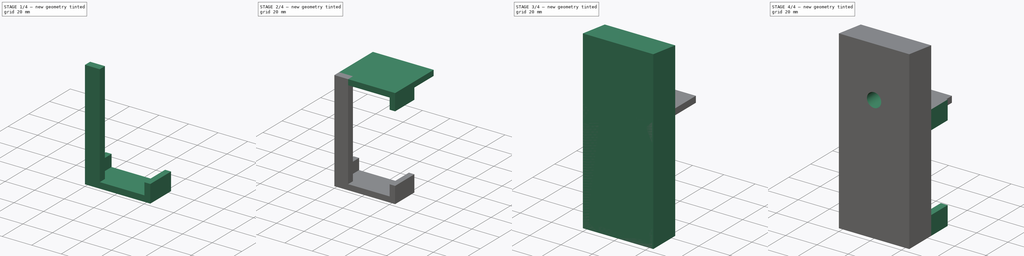
[diagram: build sequence overview — one tinted view per stage of 4, left to right]
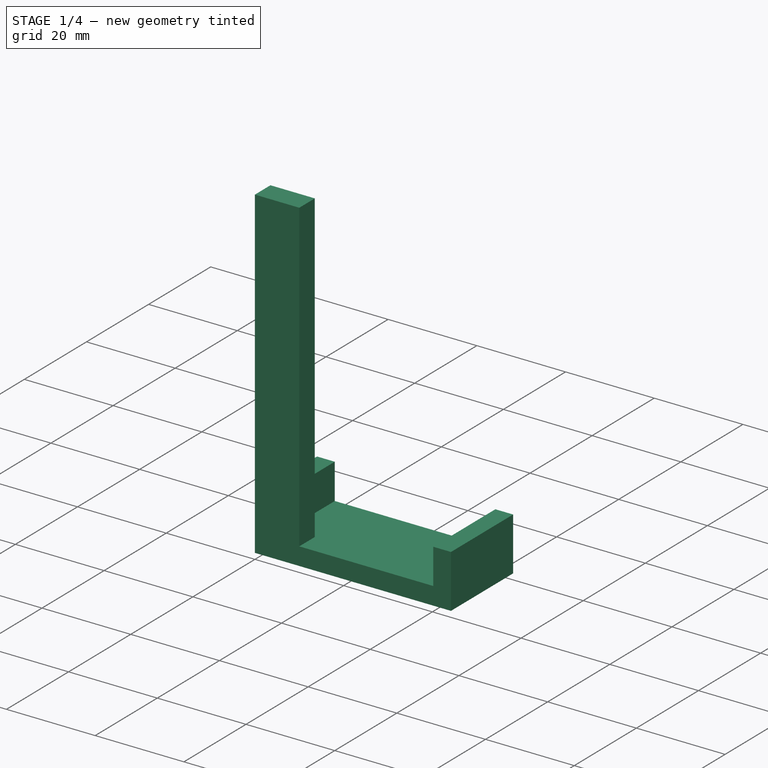
[diagram: stage 1 of 4 — iso view after this stage's code; geometry added in this stage tinted green]
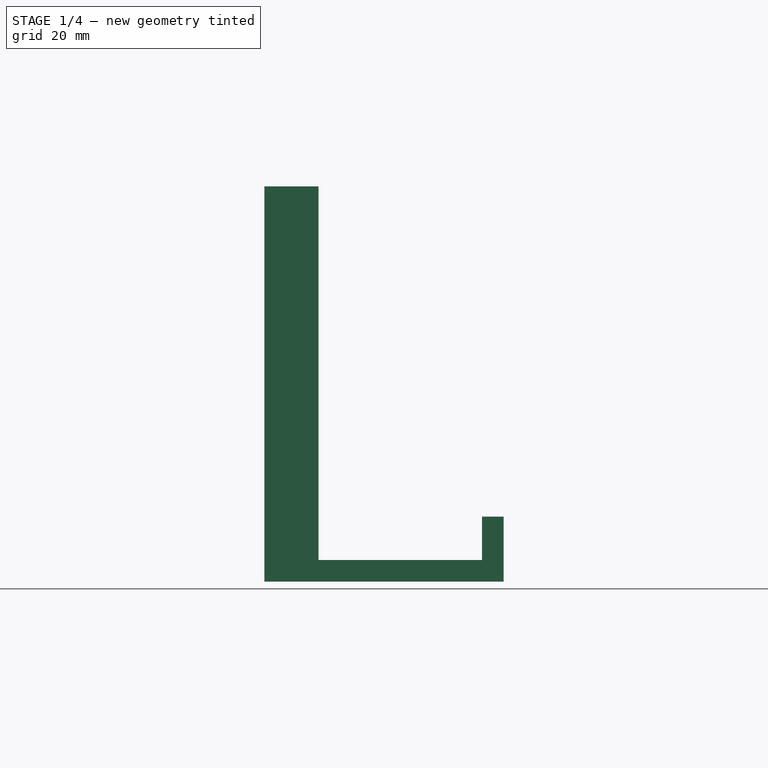
[diagram: stage 1 of 4 — front view after this stage's code; geometry added in this stage tinted green]
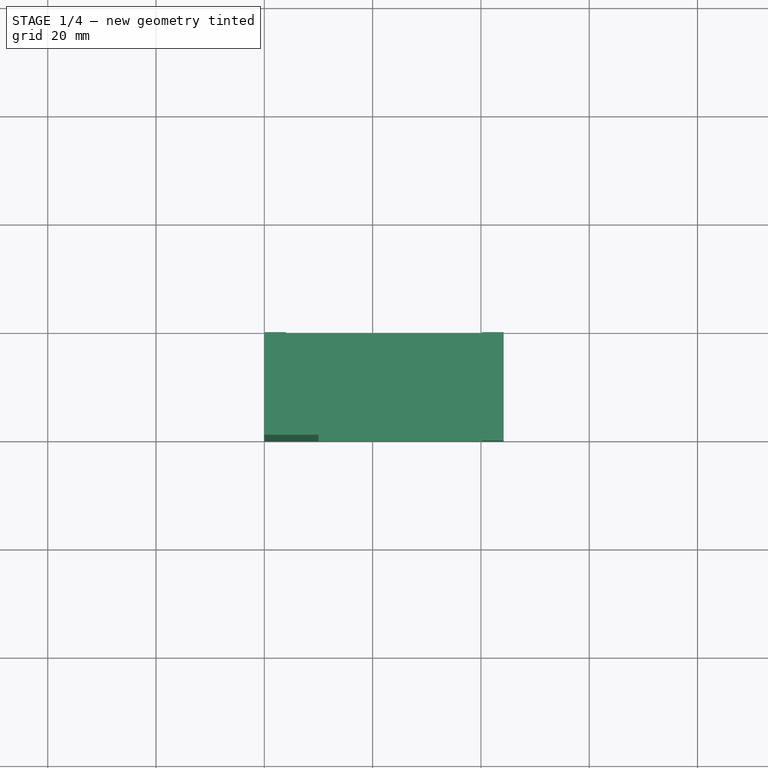
[diagram: stage 1 of 4 — top view after this stage's code; geometry added in this stage tinted green]
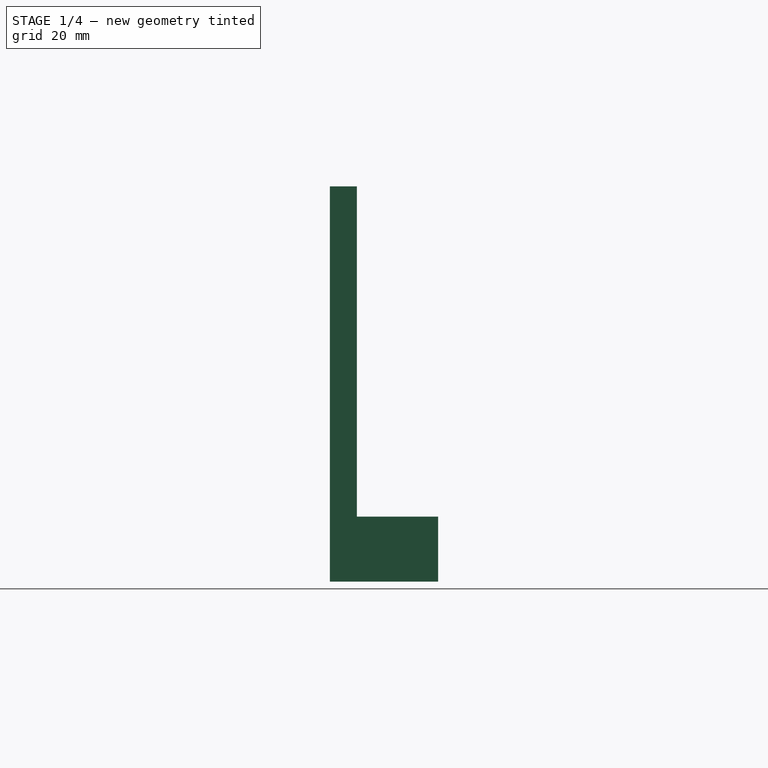
[diagram: stage 1 of 4 — right view after this stage's code; geometry added in this stage tinted green]
FCSTD DOCUMENT  (FreeCAD 0.19R24366 (Git))
Label: sailface_vertical_assembly_v1
License: All rights reserved
LicenseURL: http://en.wikipedia.org/wiki/All_rights_reserved
objects: PartDesign::Pad×11, Sketcher::SketchObject×10, PartDesign::Body×2, App::Part×2, PartDesign::Pocket×1
note: 36 computed .brp shape members not serialized (recipe doc carries the construction recipe); baked Part::Feature solids carry a one-line shape summary decoded from their .brp

FEATURE [PartDesign::Body] Body
  Group = -> [Sketch,Pad,Sketch001,Pad001,Sketch002,Pocket,Sketch003,Pad002,Sketch004,Pad003]
  Origin = -> Origin001
  Tip = -> Pad003
FEATURE [App::Part] Part  label="VerticalConnector"
  Group = -> [Body]
  Origin = -> Origin
FEATURE [Sketcher::SketchObject] Sketch005
  FullyConstrained = true
  MapMode = 5
  Placement = pos=(0,0,0) rot=(1,0,0;1.5708rad)
  Support = -> [XZ_Plane003]
  sketch-geometry (4):
    g0: LineSegment StartX=0 StartY=0 StartZ=0 EndX=10 EndY=0 EndZ=0
    g1: LineSegment StartX=10 StartY=0 StartZ=0 EndX=10 EndY=73 EndZ=0
    g2: LineSegment StartX=10 StartY=73 StartZ=0 EndX=0 EndY=73 EndZ=0
    g3: LineSegment StartX=0 StartY=73 StartZ=0 EndX=0 EndY=0 EndZ=0
  constraints (11):
    c: Coincident(g0,g1)
    c: Coincident(g1,g2)
    c: Coincident(g2,g3)
    c: Coincident(g3,g0)
    c: Horizontal(g0)
    c: Horizontal(g2)
    c: Vertical(g1)
    c: Vertical(g3)
    c: Coincident(g0,g-1)
    c: DistanceX(g2,g2) = 10
    c: DistanceY(g1,g1) = 73
FEATURE [PartDesign::Pad] Pad004
  Direction = (1,1,1)
  Length = 5
  Length2 = 100
  Placement = pos=(0,0,0) rot=(1,0,0;1.5708rad)
  Profile = -> Sketch005
  Reversed = true
  Type = 0
FEATURE [Sketcher::SketchObject] Sketch006
  ExternalGeometry = -> [Pad004]
  FullyConstrained = true
  MapMode = 5
  Placement = pos=(0,5,-1.1e-15) rot=(-1,0,0;1.5708rad)
  Support = -> [Pad004]
  sketch-geometry (9):
    g0: LineSegment StartX=0 StartY=0 StartZ=0 EndX=10 EndY=0 EndZ=0
    g1: LineSegment StartX=10 StartY=0 StartZ=0 EndX=44.2 EndY=0 EndZ=0
    g2: LineSegment StartX=0 StartY=-12 StartZ=0 EndX=0 EndY=0 EndZ=0
    g3: LineSegment StartX=0 StartY=-12 StartZ=0 EndX=4 EndY=-12 EndZ=0
    g4: LineSegment StartX=4 StartY=-12 StartZ=0 EndX=4 EndY=-4 EndZ=0
    g5: LineSegment StartX=4 StartY=-4 StartZ=0 EndX=40.2 EndY=-4 EndZ=0
    g6: LineSegment StartX=40.2 StartY=-4 StartZ=0 EndX=40.2 EndY=-12 EndZ=0
    g7: LineSegment StartX=40.2 StartY=-12 StartZ=0 EndX=44.2 EndY=-12 EndZ=0
    g8: LineSegment StartX=44.2 StartY=-12 StartZ=0 EndX=44.2 EndY=0 EndZ=0
  constraints (25):
    c: Coincident(g0,g-1)
    c: Coincident(g0,g-3)
    c: Horizontal(g1)
    c: Vertical(g2)
    c: Coincident(g2,g0)
    c: Coincident(g0,g1)
    c: Coincident(g3,g2)
    c: Horizontal(g3)
    c: Vertical(g4)
    c: Horizontal(g5)
    c: Vertical(g6)
    c: Horizontal(g7)
    c: Coincident(g8,g1)
    c: Vertical(g8)
    c: Coincident(g5,g6)
    c: Coincident(g6,g7)
    c: Coincident(g4,g5)
    c: Coincident(g3,g4)
    c: Equal(g6,g4)
    c: DistanceY(g6,g6) = 8
    c: Coincident(g7,g8)
    c: DistanceX(g4,g5) = 36.2
    c: DistanceY(g4,g0) = 4
    c: Equal(g3,g7)
    c: DistanceX(g6,g7) = 4
FEATURE [PartDesign::Pad] Pad005
  BaseFeature = -> Pad004
  Direction = (1,1,1)
  Length = 15
  Length2 = 100
  Placement = pos=(0,0,0) rot=(1,0,0;1.5708rad)
  Profile = -> Sketch006
  Type = 0
FEATURE [PartDesign::Pad] Pad006
  BaseFeature = -> Pad005
  Direction = (1,1,1)
  Length = 5
  Length2 = 100
  Placement = pos=(0,0,0) rot=(1,0,0;1.5708rad)
  Profile = -> Sketch006
  Reversed = true
  Type = 0
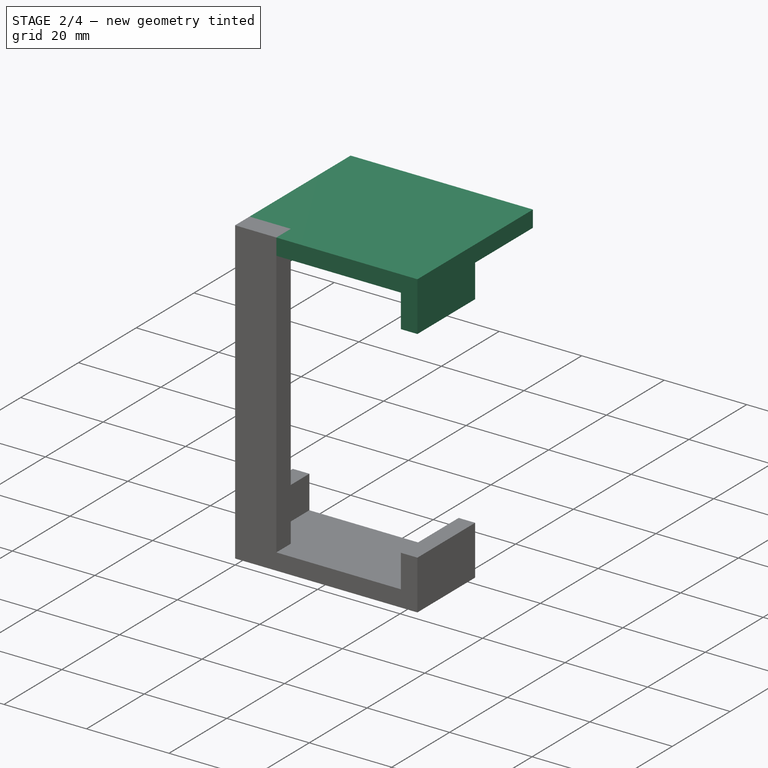
[diagram: stage 2 of 4 — iso view after this stage's code; geometry added in this stage tinted green]
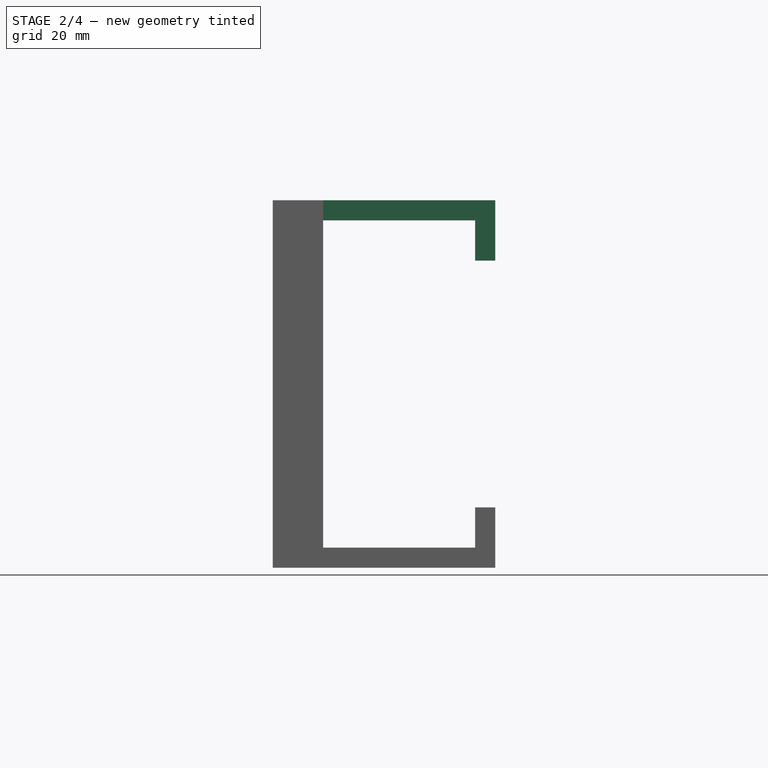
[diagram: stage 2 of 4 — front view after this stage's code; geometry added in this stage tinted green]
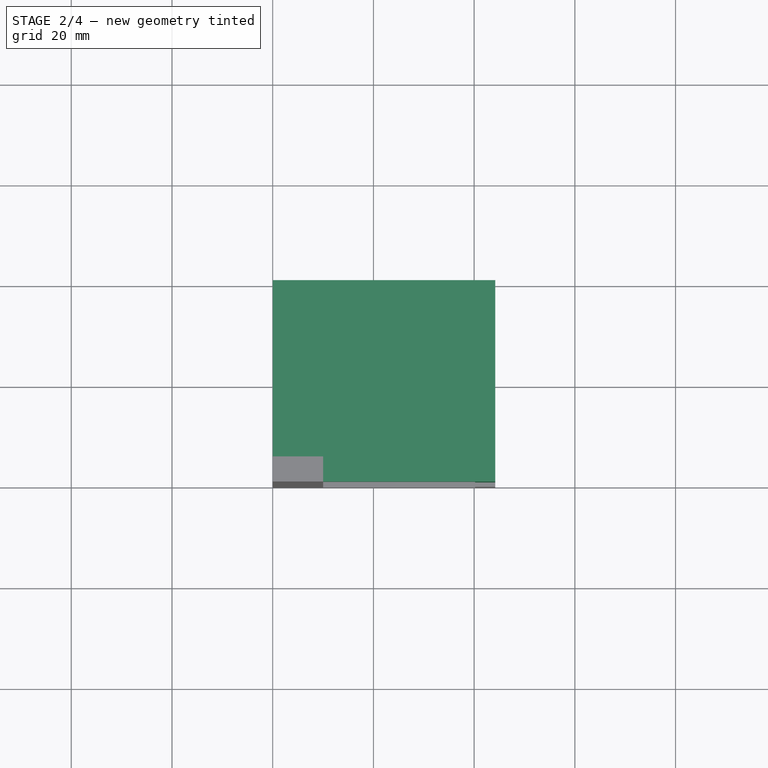
[diagram: stage 2 of 4 — top view after this stage's code; geometry added in this stage tinted green]
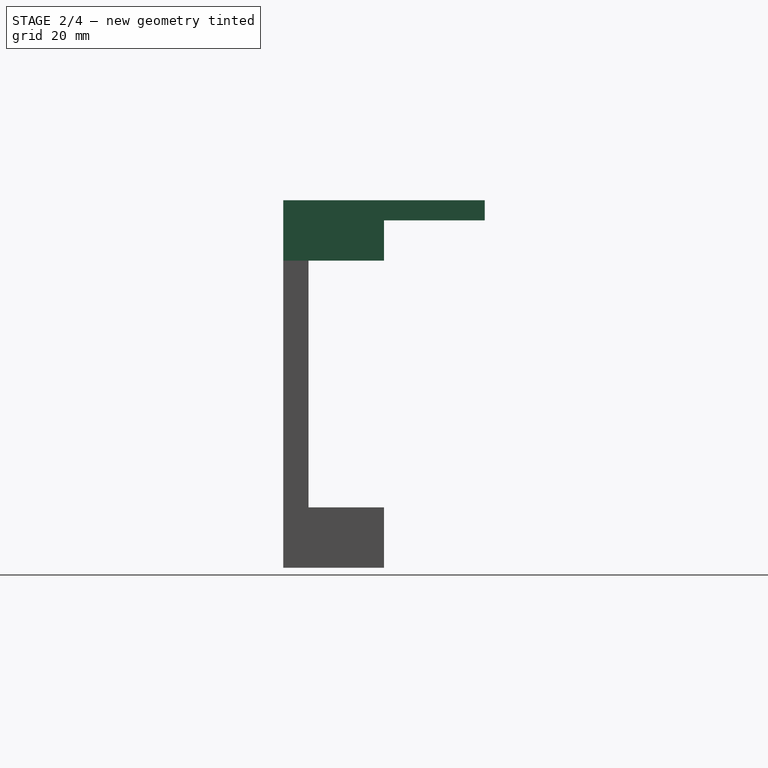
[diagram: stage 2 of 4 — right view after this stage's code; geometry added in this stage tinted green]
FEATURE [Sketcher::SketchObject] Sketch007
  ExternalGeometry = -> [Pad004]
  FullyConstrained = true
  MapMode = 5
  Placement = pos=(0,5,-1.1e-15) rot=(-1,0,0;1.5708rad)
  Support = -> [Pad004]
  sketch-geometry (8):
    g0: LineSegment StartX=0 StartY=-73 StartZ=0 EndX=0 EndY=-61 EndZ=0
    g1: LineSegment StartX=0 StartY=-61 StartZ=0 EndX=4 EndY=-61 EndZ=0
    g2: LineSegment StartX=4 StartY=-61 StartZ=0 EndX=4 EndY=-69 EndZ=0
    g3: LineSegment StartX=4 StartY=-69 StartZ=0 EndX=40.2 EndY=-69 EndZ=0
    g4: LineSegment StartX=40.2 StartY=-69 StartZ=0 EndX=40.2 EndY=-61 EndZ=0
    g5: LineSegment StartX=40.2 StartY=-61 StartZ=0 EndX=44.2 EndY=-61 EndZ=0
    g6: LineSegment StartX=44.2 StartY=-61 StartZ=0 EndX=44.2 EndY=-73 EndZ=0
    g7: LineSegment StartX=0 StartY=-73 StartZ=0 EndX=44.2 EndY=-73 EndZ=0
  constraints (23):
    c: Coincident(g0,g-4)
    c: Vertical(g0)
    c: Coincident(g1,g0)
    c: Horizontal(g1)
    c: Vertical(g2)
    c: Horizontal(g3)
    c: Coincident(g4,g3)
    c: Vertical(g4)
    c: Vertical(g6)
    c: DistanceX(g3,g3) = 36.2
    c: Coincident(g3,g2)
    c: Coincident(g2,g1)
    c: Coincident(g5,g4)
    c: Coincident(g6,g5)
    c: Horizontal(g5)
    c: Coincident(g7,g0)
    c: Coincident(g7,g6)
    c: Horizontal(g7)
    c: DistanceX(g5,g5) = 4
    c: DistanceY(g2,g0) = 8
    c: DistanceX(g0,g2) = 4
    c: DistanceY(g6,g3) = 4
    c: Equal(g4,g2)
FEATURE [PartDesign::Pad] Pad007
  BaseFeature = -> Pad006
  Direction = (1,1,1)
  Length = 15
  Length2 = 100
  Placement = pos=(0,0,0) rot=(1,0,0;1.5708rad)
  Profile = -> Sketch007
  Type = 0
FEATURE [PartDesign::Pad] Pad008
  BaseFeature = -> Pad007
  Direction = (1,1,1)
  Length = 5
  Length2 = 100
  Placement = pos=(0,0,0) rot=(1,0,0;1.5708rad)
  Profile = -> Sketch007
  Reversed = true
  Type = 0
FEATURE [Sketcher::SketchObject] Sketch008
  ExternalGeometry = -> [Pad008]
  FullyConstrained = true
  MapMode = 5
  Placement = pos=(0,20,-1.34e-14) rot=(-1,0,0;1.5708rad)
  Support = -> [Pad008]
  sketch-geometry (4):
    g0: LineSegment StartX=0 StartY=-73 StartZ=0 EndX=44.2 EndY=-73 EndZ=0
    g1: LineSegment StartX=44.2 StartY=-73 StartZ=0 EndX=44.2 EndY=-69 EndZ=0
    g2: LineSegment StartX=44.2 StartY=-69 StartZ=0 EndX=0 EndY=-69 EndZ=0
    g3: LineSegment StartX=0 StartY=-69 StartZ=0 EndX=0 EndY=-73 EndZ=0
  constraints (11):
    c: Coincident(g0,g1)
    c: Coincident(g1,g2)
    c: Coincident(g2,g3)
    c: Coincident(g3,g0)
    c: Horizontal(g0)
    c: Horizontal(g2)
    c: Vertical(g1)
    c: Vertical(g3)
    c: PointOnObject(g0,g-2)
    c: Coincident(g0,g-3)
    c: Horizontal(g-4,g1)
FEATURE [PartDesign::Pad] Pad009
  BaseFeature = -> Pad008
  Direction = (1,1,1)
  Length = 20
  Length2 = 100
  Placement = pos=(0,0,0) rot=(1,0,0;1.5708rad)
  Profile = -> Sketch008
  Type = 0
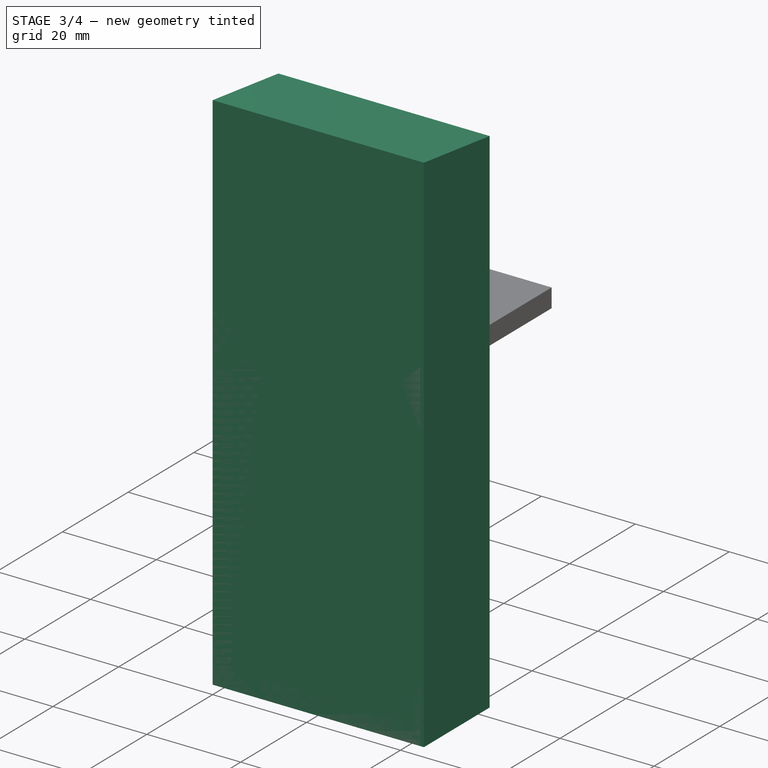
[diagram: stage 3 of 4 — iso view after this stage's code; geometry added in this stage tinted green]
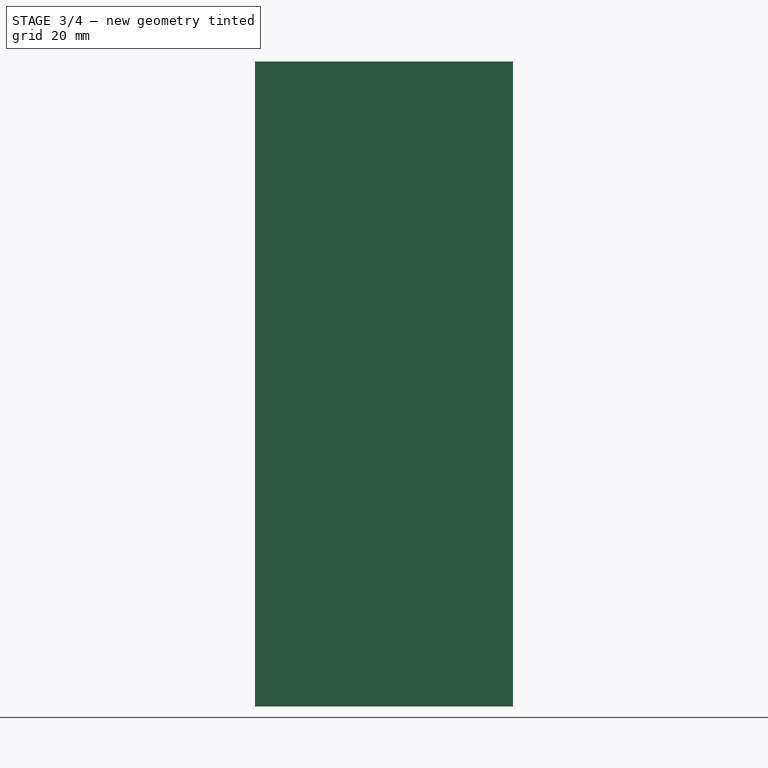
[diagram: stage 3 of 4 — front view after this stage's code; geometry added in this stage tinted green]
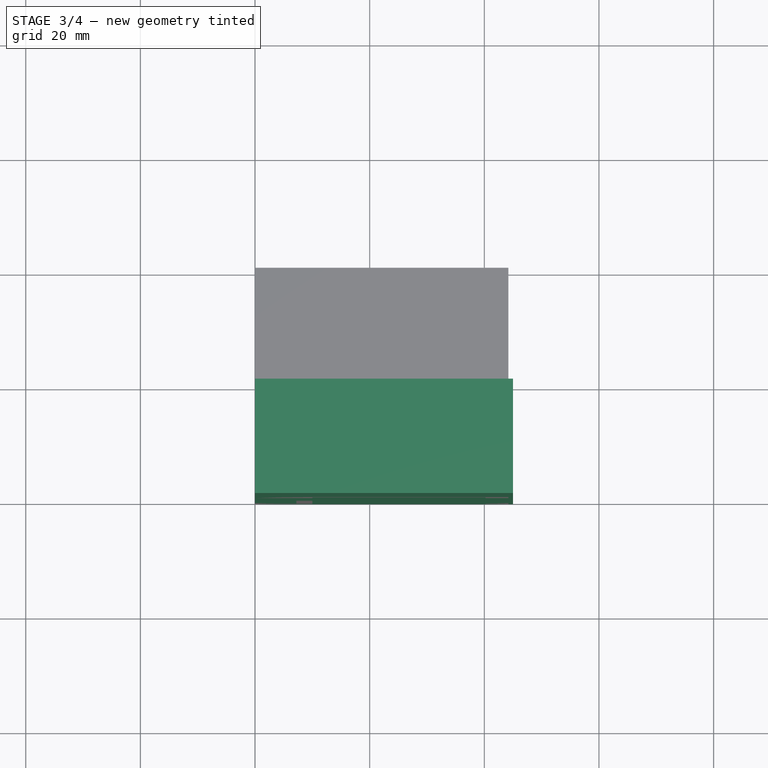
[diagram: stage 3 of 4 — top view after this stage's code; geometry added in this stage tinted green]
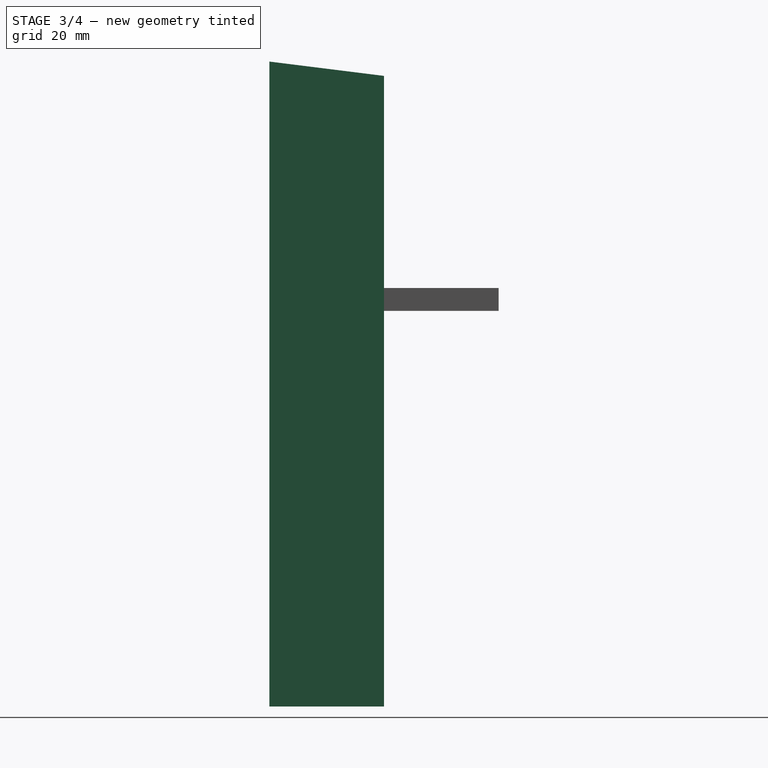
[diagram: stage 3 of 4 — right view after this stage's code; geometry added in this stage tinted green]
FEATURE [Sketcher::SketchObject] Sketch
  FullyConstrained = true
  MapMode = 5
  Support = -> [XY_Plane001]
  sketch-geometry (4):
    g0: LineSegment StartX=0 StartY=20 StartZ=0 EndX=45 EndY=20 EndZ=0
    g1: LineSegment StartX=45 StartY=20 StartZ=0 EndX=45 EndY=0 EndZ=0
    g2: LineSegment StartX=45 StartY=0 StartZ=0 EndX=0 EndY=0 EndZ=0
    g3: LineSegment StartX=0 StartY=0 StartZ=0 EndX=0 EndY=20 EndZ=0
  constraints (11):
    c: Coincident(g0,g1)
    c: Coincident(g1,g2)
    c: Coincident(g2,g3)
    c: Coincident(g3,g0)
    c: Horizontal(g0)
    c: Horizontal(g2)
    c: Vertical(g1)
    c: Vertical(g3)
    c: Coincident(g2,g-1)
    c: DistanceX(g0,g0) = 45
    c: DistanceY(g3,g3) = 20
FEATURE [PartDesign::Pad] Pad
  Direction = (1,1,1)
  Length = 110
  Length2 = 100
  Profile = -> Sketch
  Type = 0
FEATURE [Sketcher::SketchObject] Sketch001
  ExternalGeometry = -> [Pad]
  FullyConstrained = true
  MapMode = 5
  Placement = pos=(45,0,0) rot=(0.57735,0.57735,0.57735;2.0944rad)
  Support = -> [Pad]
  sketch-geometry (3):
    g0: LineSegment StartX=0 StartY=110 StartZ=0 EndX=0 EndY=112.5 EndZ=0
    g1: LineSegment StartX=0 StartY=112.5 StartZ=0 EndX=20 EndY=110 EndZ=0
    g2: LineSegment StartX=20 StartY=110 StartZ=0 EndX=0 EndY=110 EndZ=0
  constraints (7):
    c: Coincident(g0,g-3)
    c: PointOnObject(g0,g-2)
    c: Coincident(g1,g-4)
    c: Coincident(g2,g1)
    c: Coincident(g2,g0)
    c: Coincident(g1,g0)
    c: DistanceY(g0,g0) = 2.5
FEATURE [PartDesign::Pad] Pad001
  BaseFeature = -> Pad
  Direction = (1,1,1)
  Length = 45
  Length2 = 100
  Profile = -> Sketch001
  Reversed = true
  Type = 0
FEATURE [Sketcher::SketchObject] Sketch009
  ExternalGeometry = -> [Pad009]
  FullyConstrained = true
  MapMode = 5
  Placement = pos=(0,6.49e-14,69) rot=(1,0,0;3.14159rad)
  Support = -> [Pad009]
  sketch-geometry (4):
    g0: LineSegment StartX=10 StartY=-2.84e-14 StartZ=0 EndX=40.2 EndY=4.3e-15 EndZ=0
    g1: LineSegment StartX=40.2 StartY=4.3e-15 StartZ=0 EndX=40.2 EndY=-5 EndZ=0
    g2: LineSegment StartX=40.2 StartY=-5 StartZ=0 EndX=10 EndY=-5 EndZ=0
    g3: LineSegment StartX=10 StartY=-5 StartZ=0 EndX=10 EndY=-2.84e-14 EndZ=0
  constraints (9):
    c: Coincident(g0,g1)
    c: Coincident(g1,g2)
    c: Coincident(g2,g3)
    c: Coincident(g3,g0)
    c: Horizontal(g2)
    c: Vertical(g3)
    c: Coincident(g0,g-4)
    c: Coincident(g0,g-7)
    c: Coincident(g-8,g1)
FEATURE [PartDesign::Pad] Pad010
  BaseFeature = -> Pad009
  Direction = (1,1,1)
  Length = 8
  Length2 = 100
  Placement = pos=(0,0,0) rot=(1,0,0;1.5708rad)
  Profile = -> Sketch009
  Type = 0
FEATURE [PartDesign::Body] Body001  label="BatteryRearMotorHolder001"
  Group = -> [Sketch005,Pad004,Sketch006,Pad005,Pad006,Sketch007,Pad007,Pad008,Sketch008,Pad009,Sketch009,Pad010]
  Origin = -> Origin003
  Tip = -> Pad010
FEATURE [App::Part] Part001  label="BatteryRearMotorHolder"
  Group = -> [Body001]
  Origin = -> Origin002
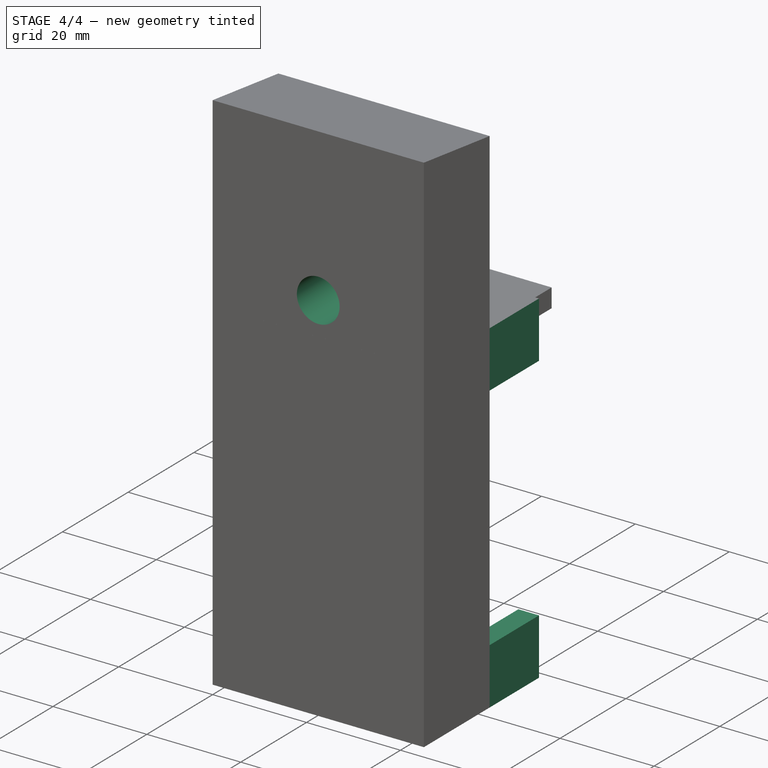
[diagram: stage 4 of 4 — iso view after this stage's code; geometry added in this stage tinted green]
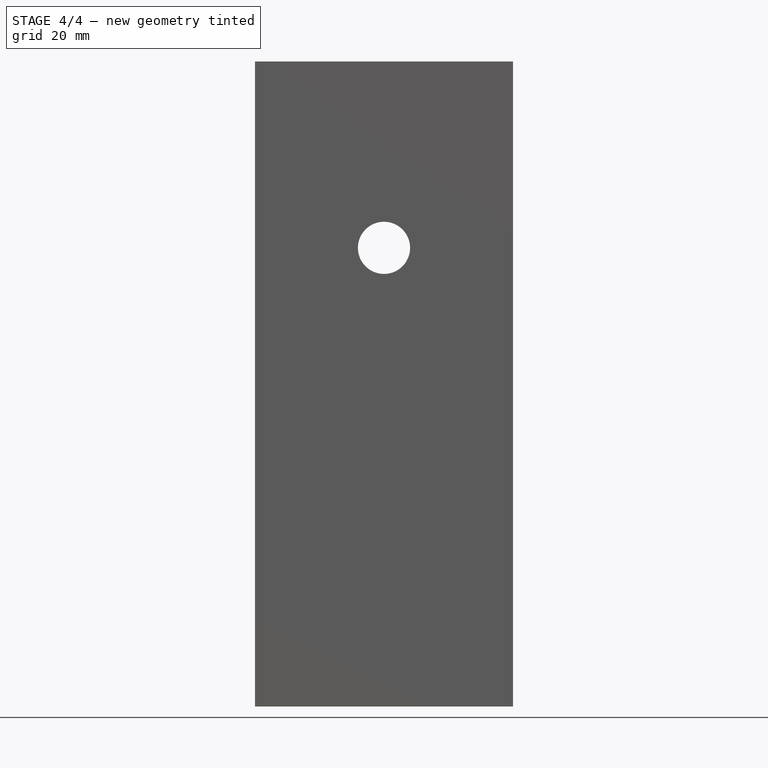
[diagram: stage 4 of 4 — front view after this stage's code; geometry added in this stage tinted green]
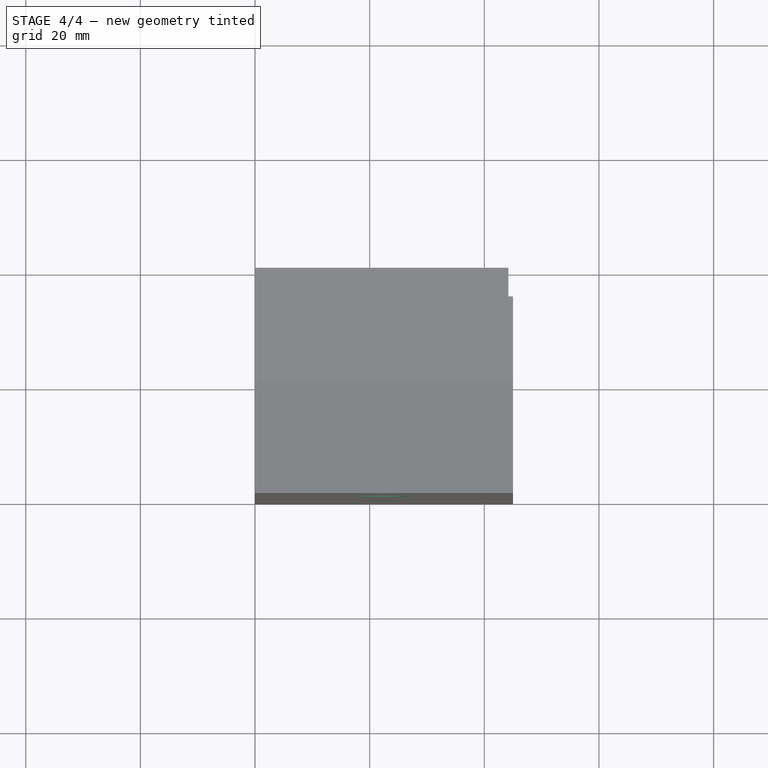
[diagram: stage 4 of 4 — top view after this stage's code; geometry added in this stage tinted green]
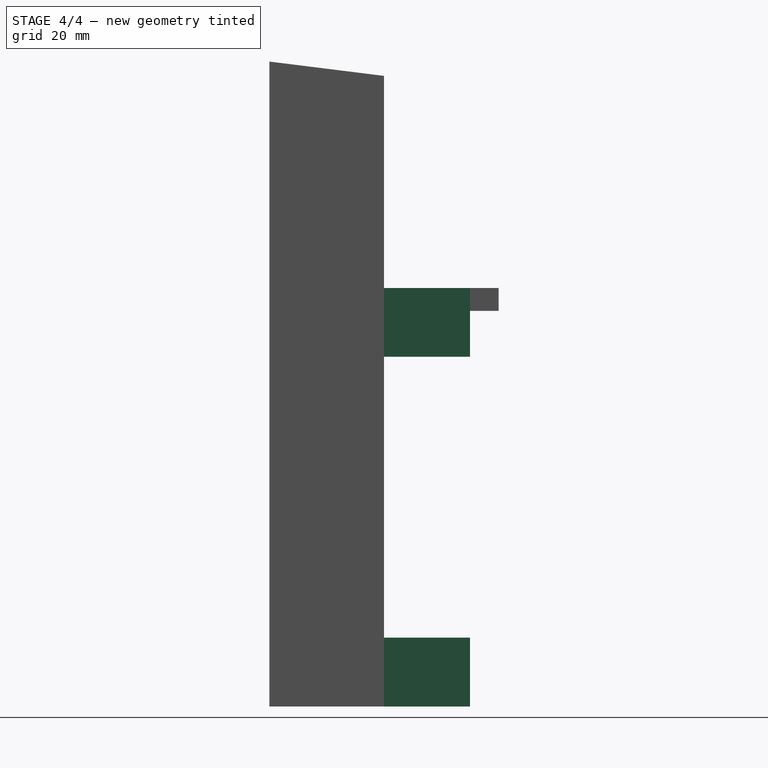
[diagram: stage 4 of 4 — right view after this stage's code; geometry added in this stage tinted green]
FEATURE [Sketcher::SketchObject] Sketch002
  ExternalGeometry = -> [Sketch]
  FullyConstrained = true
  MapMode = 5
  Placement = pos=(0,0,0) rot=(1,0,0;1.5708rad)
  Support = -> [Pad001]
  sketch-geometry (4):
    g0: Circle CenterX=22.5 CenterY=80 CenterZ=0 NormalX=0 NormalY=0 NormalZ=1 AngleXU=0 Radius=4.55
    g1: LineSegment StartX=0 StartY=0 StartZ=0 EndX=22.5 EndY=0 EndZ=0
    g2: LineSegment StartX=22.5 StartY=0 StartZ=0 EndX=45 EndY=0 EndZ=0
    g3: LineSegment StartX=22.5 StartY=0 StartZ=0 EndX=22.5 EndY=80 EndZ=0
  constraints (10):
    c: Coincident(g1,g-1)
    c: PointOnObject(g1,g-1)
    c: Coincident(g2,g1)
    c: Coincident(g2,g-3)
    c: Equal(g2,g1)
    c: Coincident(g3,g1)
    c: Coincident(g3,g0)
    c: Vertical(g3)
    c: DistanceY(g3,g3) = 80
    c: Diameter(g0) = 9.1
FEATURE [PartDesign::Pocket] Pocket
  BaseFeature = -> Pad001
  Length = 20
  Length2 = 100
  Profile = -> Sketch002
  Type = 0
FEATURE [Sketcher::SketchObject] Sketch003
  ExternalGeometry = -> [Sketch,Pocket]
  FullyConstrained = true
  MapMode = 5
  Placement = pos=(0,20,0) rot=(0,0.707107,0.707107;3.14159rad)
  Support = -> [Pocket]
  sketch-geometry (8):
    g0: LineSegment StartX=-4.4 StartY=4 StartZ=0 EndX=-40.6 EndY=4 EndZ=0
    g1: LineSegment StartX=-4.4 StartY=4 StartZ=0 EndX=-4.4 EndY=12 EndZ=0
    g2: LineSegment StartX=-4.4 StartY=12 StartZ=0 EndX=0 EndY=12 EndZ=0
    g3: LineSegment StartX=0 StartY=12 StartZ=0 EndX=0 EndY=0 EndZ=0
    g4: LineSegment StartX=-45 StartY=0 StartZ=0 EndX=-45 EndY=12 EndZ=0
    g5: LineSegment StartX=-45 StartY=12 StartZ=0 EndX=-40.6 EndY=12 EndZ=0
    g6: LineSegment StartX=-40.6 StartY=12 StartZ=0 EndX=-40.6 EndY=4 EndZ=0
    g7: LineSegment StartX=0 StartY=0 StartZ=0 EndX=-45 EndY=0 EndZ=0
  constraints (22):
    c: Horizontal(g0)
    c: Coincident(g1,g0)
    c: Vertical(g1)
    c: PointOnObject(g2,g-2)
    c: Horizontal(g2)
    c: Coincident(g3,g-1)
    c: Coincident(g4,g-3)
    c: Vertical(g4)
    c: Coincident(g6,g0)
    c: Coincident(g4,g5)
    c: Horizontal(g5)
    c: Coincident(g6,g5)
    c: Vertical(g6)
    c: Coincident(g3,g2)
    c: DistanceX(g0,g0) = 36.2
    c: Equal(g2,g5)
    c: DistanceY(g4,g0) = 4
    c: DistanceY(g0,g5) = 8
    c: Horizontal(g1,g5)
    c: Coincident(g7,g3)
    c: Coincident(g7,g4)
    c: Coincident(g1,g2)
FEATURE [PartDesign::Pad] Pad002  label="BatteryHolderBottomPad"
  BaseFeature = -> Pocket
  Direction = (1,1,1)
  Length = 15
  Length2 = 100
  Profile = -> Sketch003
  Type = 0
FEATURE [Sketcher::SketchObject] Sketch004
  ExternalGeometry = -> [Pad002]
  FullyConstrained = true
  MapMode = 5
  Placement = pos=(0,20,0) rot=(0,0.707107,0.707107;3.14159rad)
  Support = -> [Pad002]
  sketch-geometry (8):
    g0: LineSegment StartX=0 StartY=73 StartZ=0 EndX=-45 EndY=73 EndZ=0
    g1: LineSegment StartX=-45 StartY=73 StartZ=0 EndX=-45 EndY=61 EndZ=0
    g2: LineSegment StartX=-45 StartY=61 StartZ=0 EndX=-40.6 EndY=61 EndZ=0
    g3: LineSegment StartX=-40.6 StartY=61 StartZ=0 EndX=-40.6 EndY=69 EndZ=0
    g4: LineSegment StartX=-40.6 StartY=69 StartZ=0 EndX=-4.4 EndY=69 EndZ=0
    g5: LineSegment StartX=-4.4 StartY=69 StartZ=0 EndX=-4.4 EndY=61 EndZ=0
    g6: LineSegment StartX=-4.4 StartY=61 StartZ=0 EndX=0 EndY=61 EndZ=0
    g7: LineSegment StartX=0 StartY=61 StartZ=0 EndX=0 EndY=73 EndZ=0
  constraints (24):
    c: PointOnObject(g0,g-2)
    c: Horizontal(g0)
    c: PointOnObject(g0,g-3)
    c: Coincident(g1,g0)
    c: PointOnObject(g1,g-3)
    c: Horizontal(g2)
    c: Vertical(g3)
    c: Horizontal(g4)
    c: Vertical(g5)
    c: PointOnObject(g6,g-2)
    c: Coincident(g7,g6)
    c: Coincident(g7,g0)
    c: Horizontal(g6)
    c: Coincident(g6,g5)
    c: Coincident(g2,g3)
    c: Coincident(g1,g2)
    c: Coincident(g4,g5)
    c: Coincident(g4,g3)
    c: DistanceX(g4,g4) = 36.2
    c: DistanceY(g3,g3) = 8
    c: DistanceY(g3,g0) = 4
    c: Equal(g5,g3)
    c: Equal(g2,g6)
    c: DistanceY(g-4,g3) = 65
FEATURE [PartDesign::Pad] Pad003  label="BatteryHolderTopPad"
  BaseFeature = -> Pad002
  Direction = (1,1,1)
  Length = 15
  Length2 = 100
  Profile = -> Sketch004
  Type = 0
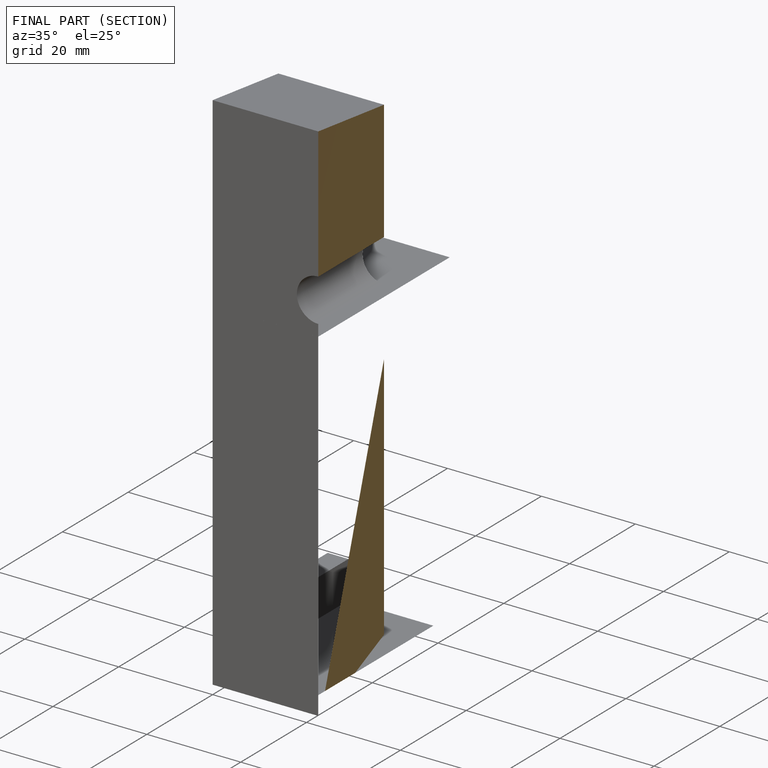
[diagram: finished part — half-section view (interior)]
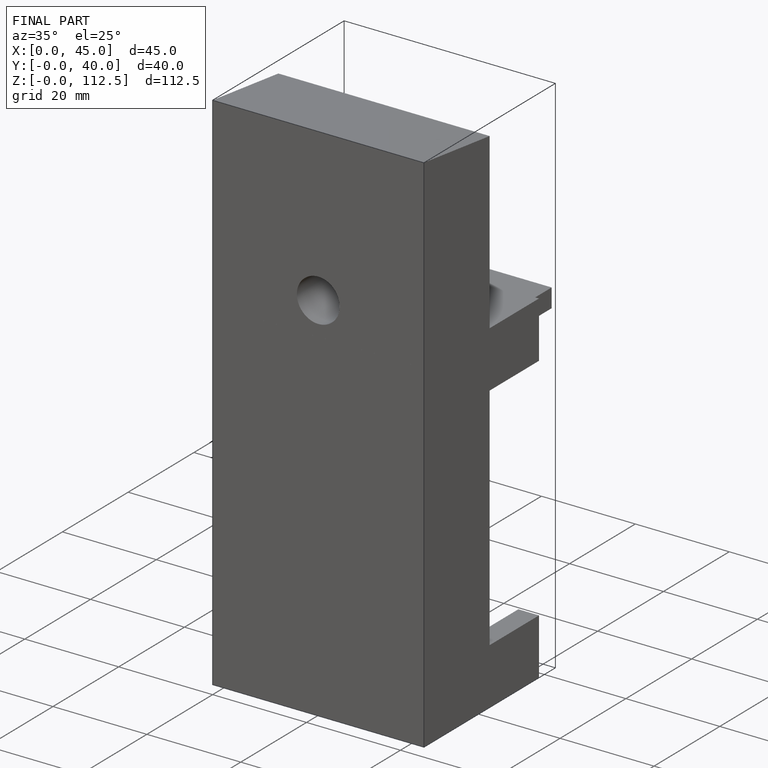
[diagram: finished part — iso view with bounding-box wireframe]
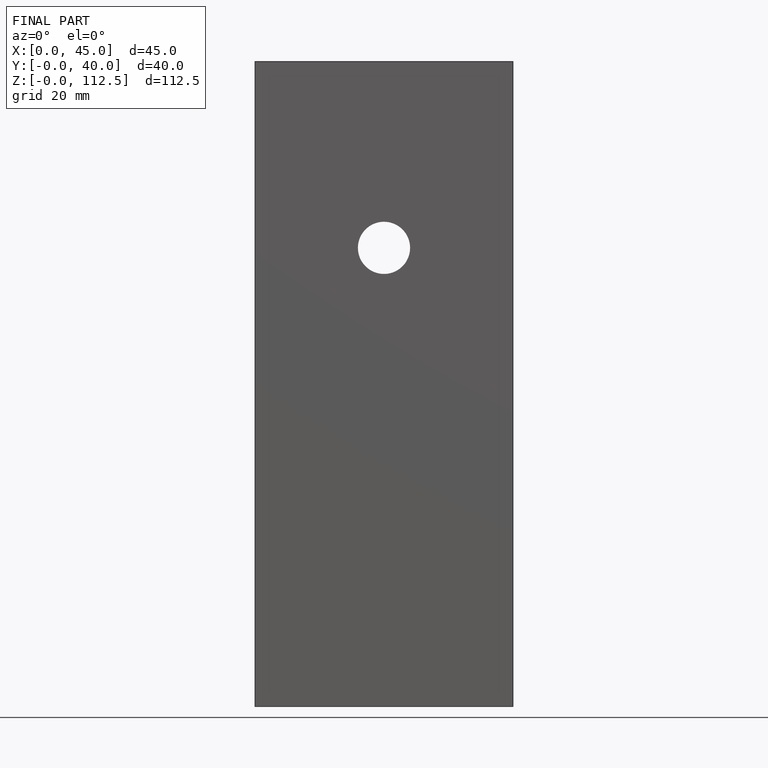
[diagram: finished part — front view with bounding-box wireframe]
